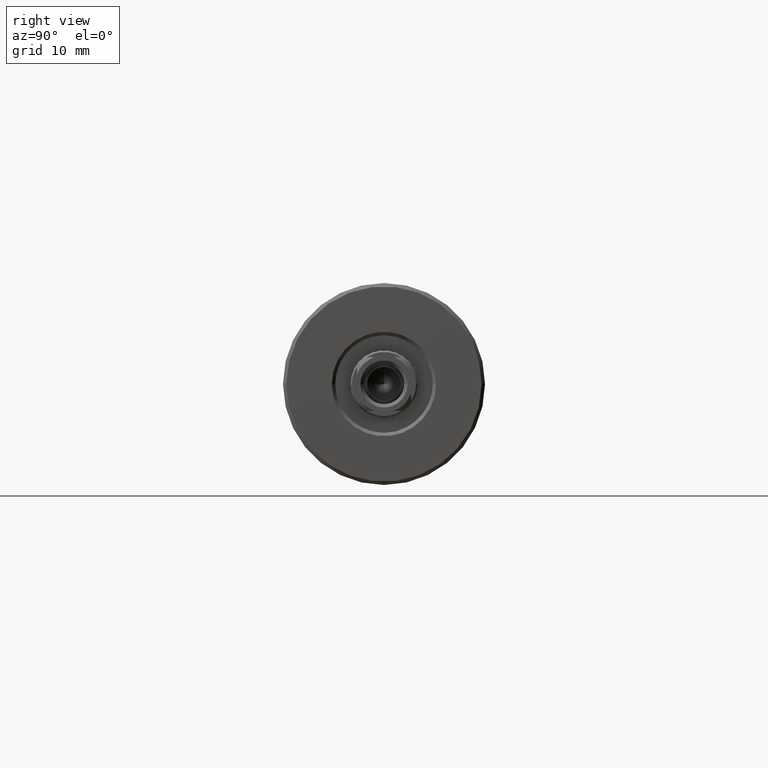
[diagram: clean part render]
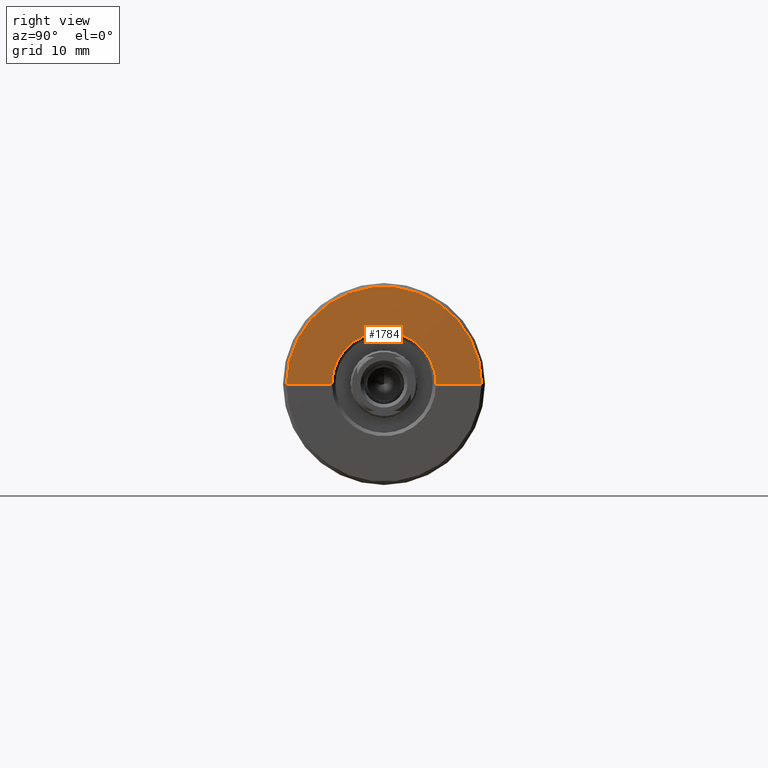
[diagram: same view with one face highlighted and labeled with its STEP entity id]
A machine part, right view. The second image highlights one B-rep face of the part: STEP entity #1784.
In plain terms, the highlighted conical surface has half-angle 89.605 deg.
Its self-contained STEP definition (entity closure, byte-faithful):
#53 = EDGE_CURVE ( 'NONE', #672, #2150, #2154, .T. ) ;
#64 = EDGE_CURVE ( 'NONE', #672, #1526, #551, .T. ) ;
#207 = DIRECTION ( 'NONE',  ( -6.411747330388434316E-16, -1.000000000000000000, 0.000000000000000000 ) ) ;
#208 = VECTOR ( 'NONE', #894, 1000.000000000000114 ) ;
#254 = CARTESIAN_POINT ( 'NONE',  ( -0.05344819386121137800, 7.749988109817745219, 1.362418835987746714E-15 ) ) ;
#270 = DIRECTION ( 'NONE',  ( -0.006896387721668857836, 0.9999762196354432531, 1.224617676600016245E-16 ) ) ;
#464 = LINE ( 'NONE', #1219, #524 ) ;
#524 = VECTOR ( 'NONE', #270, 1000.000000000000114 ) ;
#551 = LINE ( 'NONE', #1309, #208 ) ;
#663 = CARTESIAN_POINT ( 'NONE',  ( -0.1000000000006713574, -14.49999999999997335, 0.000000000000000000 ) ) ;
#672 = VERTEX_POINT ( 'NONE', #2133 ) ;
#843 = CONICAL_SURFACE ( 'NONE', #1720, 14.49999999999995381, 1.563899884406502405 ) ;
#894 = DIRECTION ( 'NONE',  ( -0.006896387721670141531, -0.9999762196354432531, 0.000000000000000000 ) ) ;
#1016 = FACE_OUTER_BOUND ( 'NONE', #2018, .T. ) ;
#1052 = CIRCLE ( 'NONE', #1402, 14.49999999999995381 ) ;
#1091 = ORIENTED_EDGE ( 'NONE', *, *, #1697, .F. ) ;
#1172 = AXIS2_PLACEMENT_3D ( 'NONE', #2250, #2046, #2240 ) ;
#1219 = CARTESIAN_POINT ( 'NONE',  ( -0.1000000000006527612, 14.49999999999993427, 1.775737858763656690E-15 ) ) ;
#1246 = DIRECTION ( 'NONE',  ( -6.411747330388434316E-16, -1.000000000000000000, 0.000000000000000000 ) ) ;
#1309 = CARTESIAN_POINT ( 'NONE',  ( -0.1000000000006713574, -14.49999999999997335, 0.000000000000000000 ) ) ;
#1337 = ORIENTED_EDGE ( 'NONE', *, *, #64, .F. ) ;
#1374 = ORIENTED_EDGE ( 'NONE', *, *, #53, .T. ) ;
#1402 = AXIS2_PLACEMENT_3D ( 'NONE', #1910, #1550, #207 ) ;
#1526 = VERTEX_POINT ( 'NONE', #663 ) ;
#1550 = DIRECTION ( 'NONE',  ( -1.000000000000000000, 6.415603269213350828E-16, -0.000000000000000000 ) ) ;
#1575 = DIRECTION ( 'NONE',  ( -1.000000000000000000, 6.415603269213350828E-16, -0.000000000000000000 ) ) ;
#1697 = EDGE_CURVE ( 'NONE', #1526, #2035, #1052, .T. ) ;
#1720 = AXIS2_PLACEMENT_3D ( 'NONE', #1980, #1575, #1246 ) ;
#1784 = ADVANCED_FACE ( 'NONE', ( #1016 ), #843, .T. ) ;
#1798 = CARTESIAN_POINT ( 'NONE',  ( -0.1000000000006527612, 14.49999999999993427, 1.806354028742341858E-15 ) ) ;
#1836 = ORIENTED_EDGE ( 'NONE', *, *, #1843, .T. ) ;
#1843 = EDGE_CURVE ( 'NONE', #2150, #2035, #464, .T. ) ;
#1910 = CARTESIAN_POINT ( 'NONE',  ( -0.1000000000006620593, -1.936230527284280752E-14, 0.000000000000000000 ) ) ;
#1980 = CARTESIAN_POINT ( 'NONE',  ( -0.1000000000006620593, -1.936230527284280752E-14, 0.000000000000000000 ) ) ;
#2018 = EDGE_LOOP ( 'NONE', ( #1374, #1836, #1091, #1337 ) ) ;
#2035 = VERTEX_POINT ( 'NONE', #1798 ) ;
#2046 = DIRECTION ( 'NONE',  ( -1.000000000000000000, 6.415603269213350828E-16, -0.000000000000000000 ) ) ;
#2133 = CARTESIAN_POINT ( 'NONE',  ( -0.05344819386122132837, -7.749988109817783410, 0.000000000000000000 ) ) ;
#2150 = VERTEX_POINT ( 'NONE', #254 ) ;
#2154 = CIRCLE ( 'NONE', #1172, 7.749988109817764759 ) ;
#2240 = DIRECTION ( 'NONE',  ( -6.417787222120274911E-16, -1.000000000000000000, 0.000000000000000000 ) ) ;
#2250 = CARTESIAN_POINT ( 'NONE',  ( -0.05344819386121635318, -1.939217106480840415E-14, 0.000000000000000000 ) ) ;